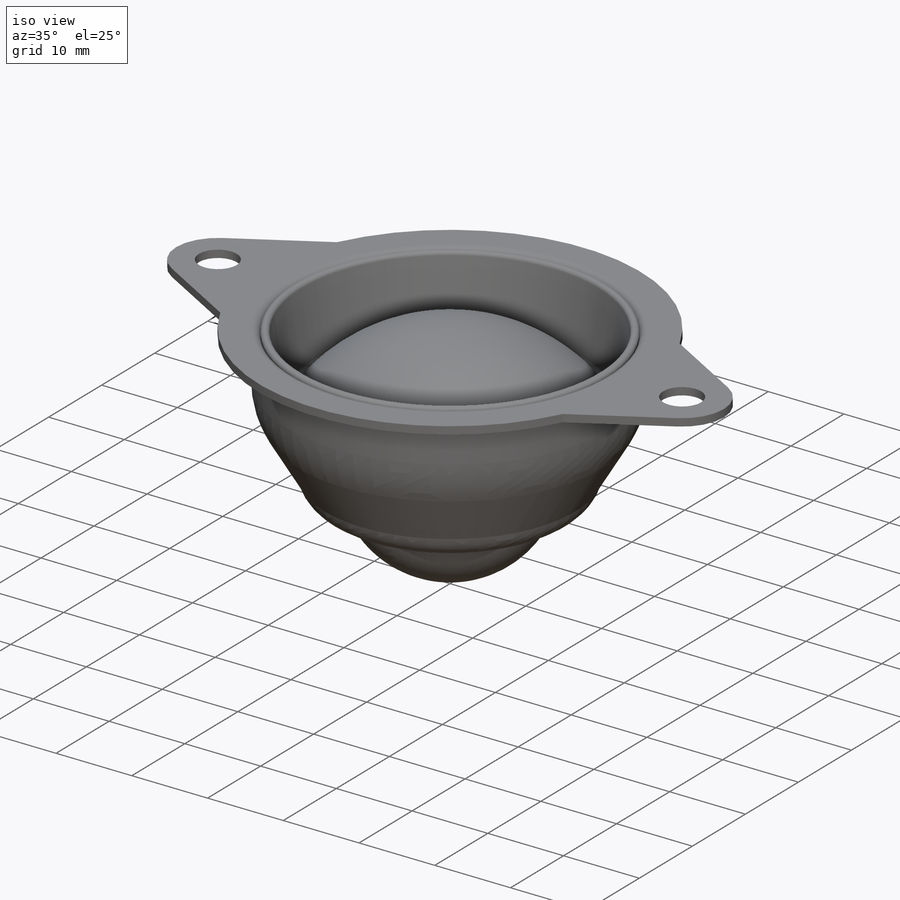
[diagram: iso view]
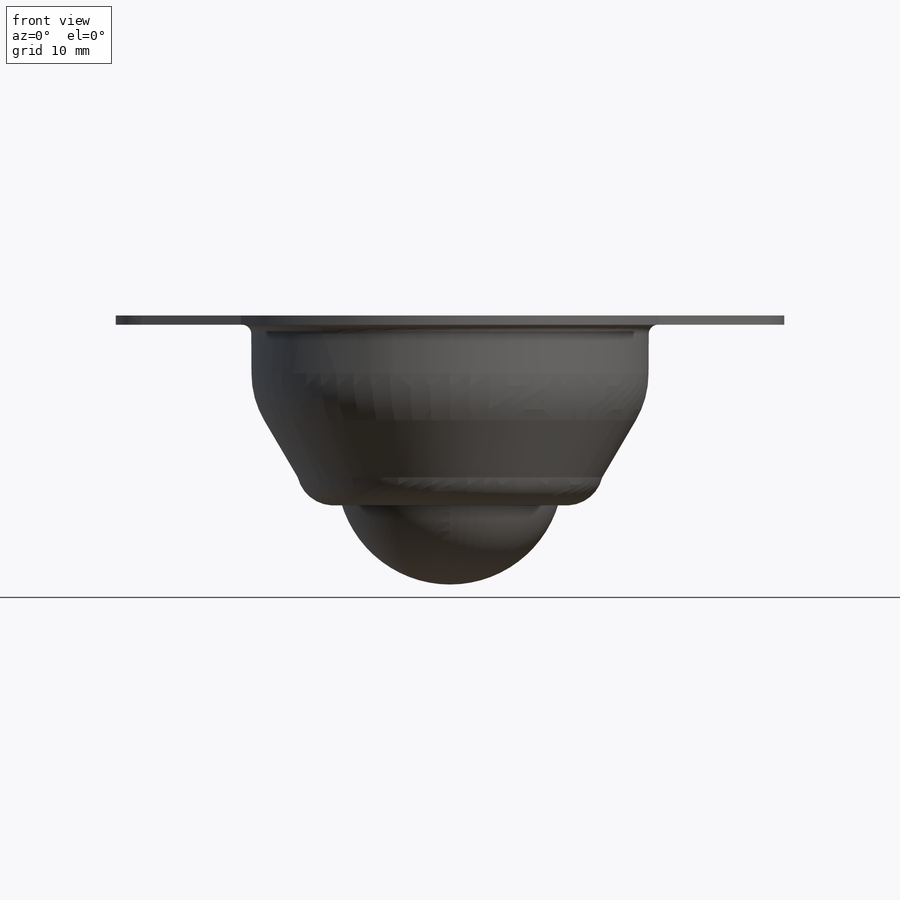
[diagram: front view]
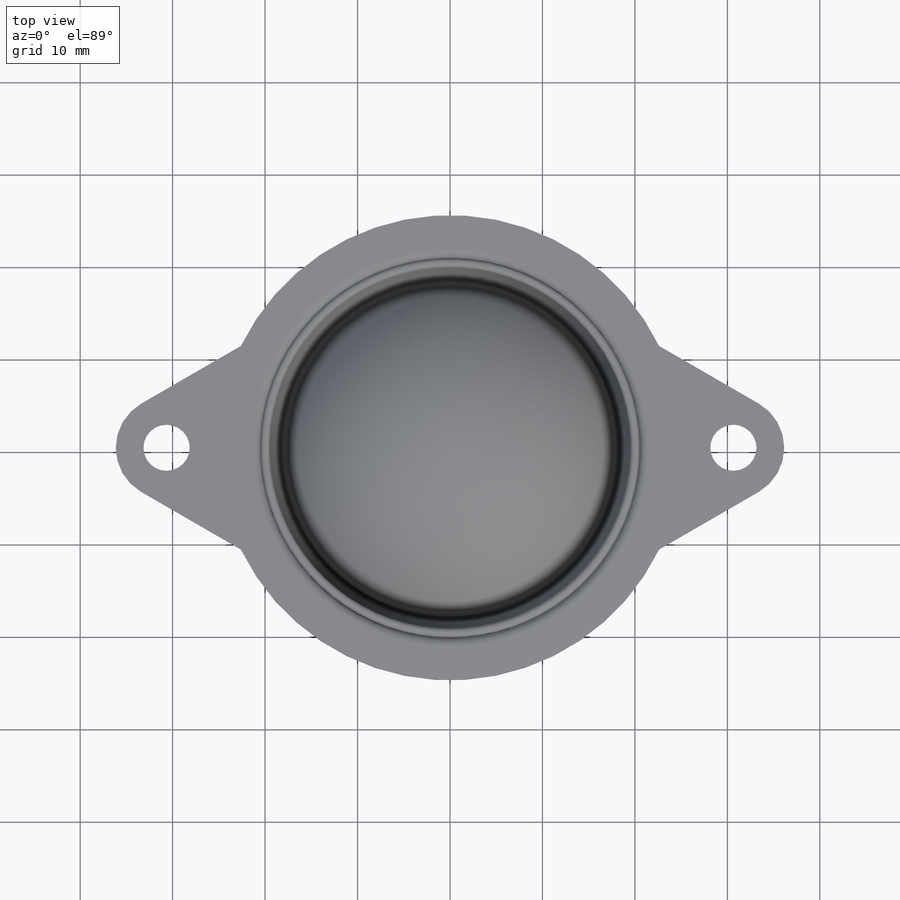
[diagram: top view]
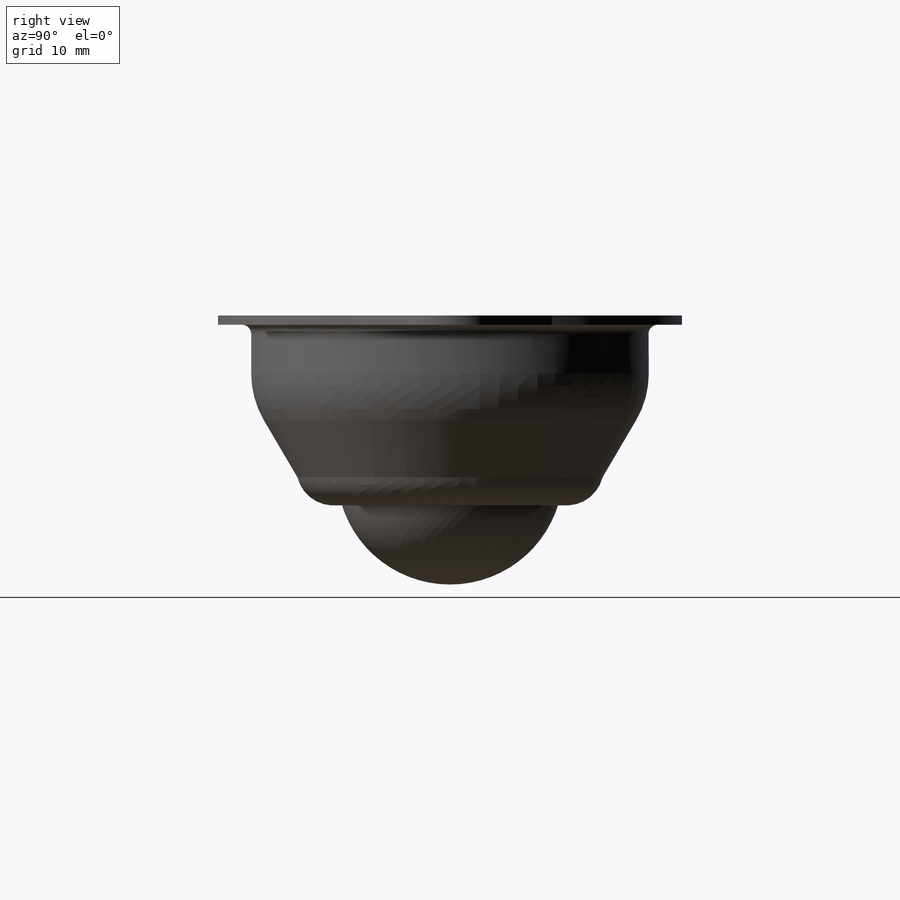
[diagram: right view]
SOLIDWORKS PART (.sldprt)
format: sldprt  version: not decoded by parser v0  size: 459,264 bytes
history: native  units: mm
features: sketch x4, plane x3, revolve x3, material x1, extrude x1 (+9 scaffold rows collapsed)
feature tree (21):
  scaffold x9  (default folders/planes/origin — collapsed)
  material  "Material <sin especificar>"
  plane  "Alzado"
  plane  "Planta"
  plane  "Vista lateral"
  sketch  "Croquis1"  dims[c1.D6=~0.839898mm c1.D9=4.0mm c1.D12=10.0mm c1.D13=1.0mm c1.D1=20.5mm c1.D2=50.3mm c1.D3=43.0mm c1.D4=17.5mm c1.D5=1.0mm c1.D7=~18.339898mm c2.D6=1.0mm c2.D7=9.0mm c2.D8=1.0mm c2.D10=24.0mm c2.D11=33.0mm]
  revolve  "Revolución1"  Angle=360deg
  sketch  "Croquis2"  dims[D1=11.0mm D3=5.0mm D2=22.0mm]
  extrude  "Saliente-Extruir1"  Depth=1mm
  sketch  "Croquis3"  dims[c1.D3=~18.273871mm c1.D8=0.4mm c1.D9=0.49mm c1.D1=38.0mm c1.D2=35.2mm c2.D3=1.0mm c2.D4=10.0mm c2.D5=1.6mm c2.D6=1.0mm c2.D7=1.0mm]
  revolve  "Revolución2"  Angle=360deg
  sketch  "Croquis4"  dims[c1.D1=12.25mm c1.D2=1.0mm c1.D3=10.25mm c2.D2=8.6mm]
  revolve  "Revolución3"  Angle=360deg
decode coverage: 8 of 8 modeling features carry decoded parameters
note: ~ marks probable driven/reference dimensions
note: suppression state not decoded; provenance and decode notes live in map.json
